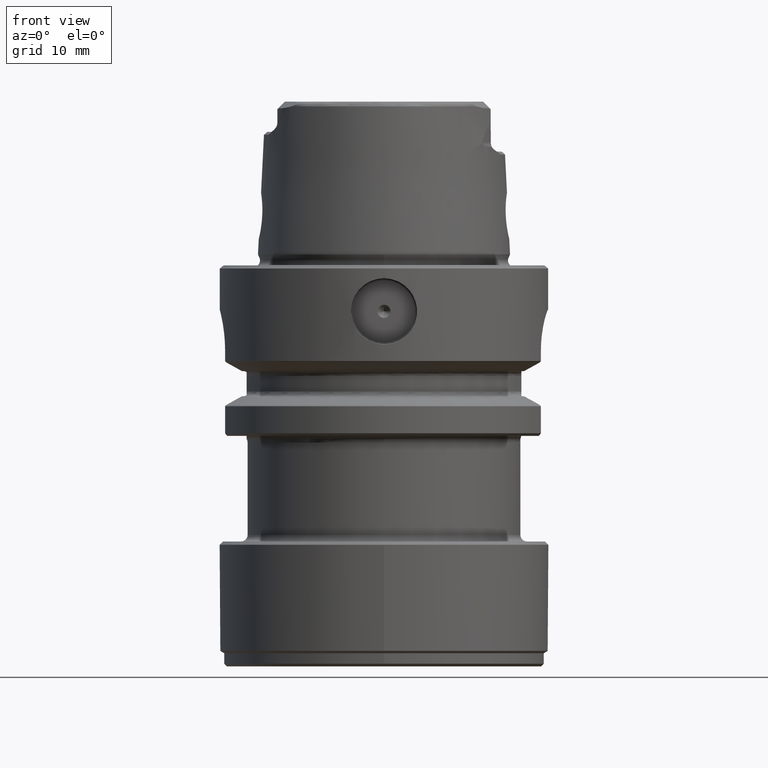
[diagram: clean part render]
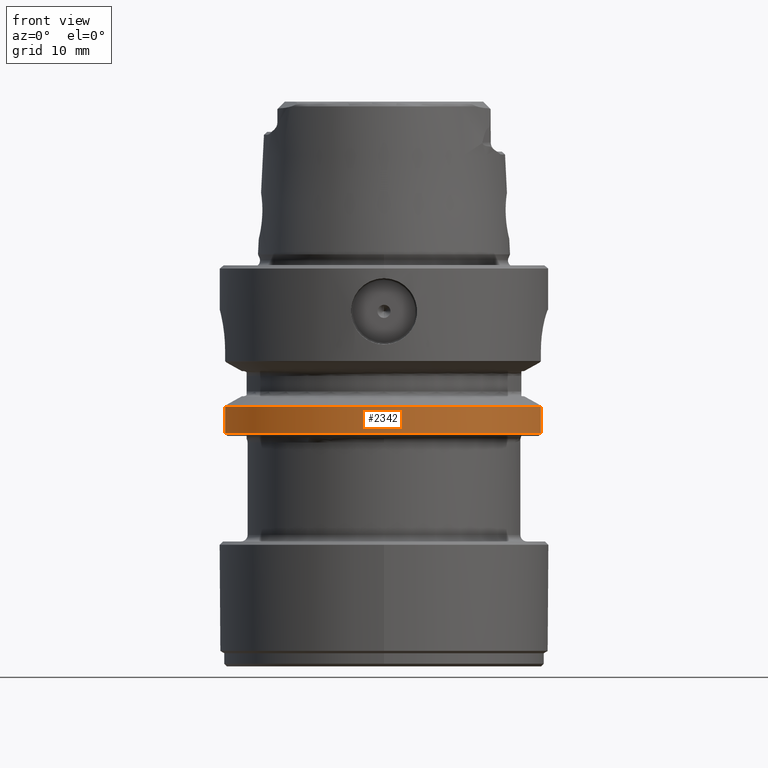
[diagram: same view with one face highlighted and labeled with its STEP entity id]
A machine part, front view. The second image highlights one B-rep face of the part: STEP entity #2342.
In plain terms, the highlighted cylindrical surface (partial cylindrical patch) has radius 24.975 mm, axis along (-0, -0, 1).
Its self-contained STEP definition (entity closure, byte-faithful):
#1696=VERTEX_POINT('NONE',#4690);
#1904=EDGE_CURVE('NONE',#2656,#3980,#4915,.F.);
#1970=EDGE_CURVE('NONE',#2456,#1696,#4986,.F.);
#2342=ADVANCED_FACE('NONE',(#5394),#5395,.T.);
#2456=VERTEX_POINT('NONE',#5517);
#2502=VERTEX_POINT('NONE',#5565);
#2656=VERTEX_POINT('NONE',#5732);
#2826=EDGE_CURVE('NONE',#3980,#3334,#5920,.F.);
#3334=VERTEX_POINT('',#6485);
#3688=EDGE_CURVE('NONE',#2656,#2502,#6885,.F.);
#3946=EDGE_CURVE('NONE',#2502,#1696,#7171,.T.);
#3980=VERTEX_POINT('NONE',#7207);
#4126=EDGE_CURVE('NONE',#3334,#2456,#7365,.F.);
#4690=CARTESIAN_POINT('',(-24.1700000312876,-6.28981108520436,-21.4408965343809));
#4915=LINE('',#8872,#8873);
#4986=LINE('',#9157,#9158);
#5394=FACE_OUTER_BOUND('',#10148,.T.);
#5395=CYLINDRICAL_SURFACE('',#10149,24.975);
#5517=CARTESIAN_POINT('',(-24.1700000312876,-6.28981108520436,-25.55));
#5565=CARTESIAN_POINT('',(0.0,-24.975,-21.4408965343809));
#5732=CARTESIAN_POINT('',(23.8675890302672,-7.35451010484504,-21.4408965343809));
#5920=CIRCLE('',#11354,24.975);
#6485=CARTESIAN_POINT('',(3.07590846510778E-015,-24.975,-25.55));
#6885=CIRCLE('',#14328,24.975);
#7171=CIRCLE('',#15157,24.975);
#7207=CARTESIAN_POINT('',(23.8675890302672,-7.35451010484504,-25.55));
#7365=CIRCLE('',#15660,24.975);
#8872=CARTESIAN_POINT('',(23.8675890302672,-7.35451010484504,0.0));
#8873=VECTOR('',#17428,1.0);
#9157=CARTESIAN_POINT('',(-24.1700000312876,-6.28981108520437,0.0));
#9158=VECTOR('',#17499,1.0);
#10148=EDGE_LOOP('',(#17928,#17929,#17930,#17931,#17932,#17933));
#10149=AXIS2_PLACEMENT_3D('',#17934,#17935,#17936);
#11354=AXIS2_PLACEMENT_3D('',#18442,#18443,#18444);
#14328=AXIS2_PLACEMENT_3D('',#19669,#19670,#19671);
#15157=AXIS2_PLACEMENT_3D('',#20013,#20014,#20015);
#15660=AXIS2_PLACEMENT_3D('',#20199,#20200,#20201);
#17428=DIRECTION('',(0.0,0.0,1.0));
#17499=DIRECTION('',(0.0,0.0,-1.0));
#17928=ORIENTED_EDGE('',*,*,#1904,.F.);
#17929=ORIENTED_EDGE('',*,*,#3688,.T.);
#17930=ORIENTED_EDGE('',*,*,#3946,.T.);
#17931=ORIENTED_EDGE('',*,*,#1970,.F.);
#17932=ORIENTED_EDGE('',*,*,#4126,.F.);
#17933=ORIENTED_EDGE('',*,*,#2826,.F.);
#17934=CARTESIAN_POINT('',(0.0,0.0,0.0));
#17935=DIRECTION('',(-0.0,-0.0,1.0));
#17936=DIRECTION('',(-1.0,0.0,0.0));
#18442=CARTESIAN_POINT('',(0.0,0.0,-25.55));
#18443=DIRECTION('',(0.0,0.0,1.0));
#18444=DIRECTION('',(-1.0,0.0,0.0));
#19669=CARTESIAN_POINT('',(0.0,0.0,-21.4408965343809));
#19670=DIRECTION('',(0.0,0.0,1.0));
#19671=DIRECTION('',(-1.0,0.0,0.0));
#20013=CARTESIAN_POINT('',(0.0,0.0,-21.4408965343809));
#20014=DIRECTION('',(0.0,0.0,-1.0));
#20015=DIRECTION('',(-1.0,0.0,0.0));
#20199=CARTESIAN_POINT('',(0.0,0.0,-25.55));
#20200=DIRECTION('',(0.0,0.0,1.0));
#20201=DIRECTION('',(-1.0,0.0,0.0));